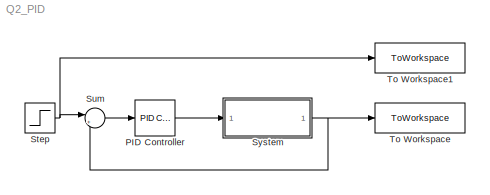
MODEL Q2_PID
KIND model
BLOCK [Reference] PID Controller  REF=simulink/Continuous/PID Controller
  AWVariant = Passthrough
  AntiWindupMode = none
  Controller = PID
  ControllerParametersSource = internal
  D = Kd
  DGainOutDataTypeStr = Inherit: Inherit via internal rule
  DOutMax = []
  DOutMin = []
  DParamDataTypeStr = Inherit: Inherit via internal rule
  DParamMax = []
  DParamMin = []
  DProdOutDataTypeStr = Inherit: Inherit via internal rule
  DVariant = InternalParameters
  DerivativeFilterVariant = ContFilter
  DifferentiatorICPrevScaledInput = 0
  DifferentiatorOutDataTypeStr = Inherit: Inherit via internal rule
  DifferentiatorOutMax = []
  DifferentiatorOutMin = []
  DivideOutDataTypeStr = Inherit: Inherit via internal rule
  DivideOutMax = []
  DivideOutMin = []
  ExternalReset = none
  ExternalResetVariant = Disabled
  FdbkBlocksVariant = Forward
  FilterContinuousStateAttributes = ''
  FilterDiffDenAccumDataTypeStr = Inherit: Inherit via internal rule
  FilterDiffDenProductOutputDataTypeStr = Inherit: Inherit via internal rule
  FilterDiffNumAccumDataTypeStr = Inherit: Inherit via internal rule
  FilterDiffNumProductOutputDataTypeStr = Inherit: Inherit via internal rule
  FilterDiffOutCoefDataTypeStr = Inherit: Inherit via internal rule
  FilterDiffOutCoefMax = []
  FilterDiffOutCoefMin = []
  FilterICVariant = InternalICsFilter
  FilterMethod = Forward Euler
  FilterOutDataTypeStr = Inherit: Inherit via internal rule
  FilterOutMax = []
  FilterOutMin = []
  FilterRTWStateStorageClass = Auto
  FilterStateMustResolveToSignalObject = off
  Form = Parallel
  I = Ki
  IGainOutDataTypeStr = Inherit: Inherit via internal rule
  IOutMax = []
  IOutMin = []
  IParamDataTypeStr = Inherit: Inherit via internal rule
  IParamMax = []
  IParamMin = []
  IProdOutDataTypeStr = Inherit: Inherit via internal rule
  IVariant = InternalParameters
  IdealPFdbkVariant = Disabled
  IdealPVariant = Disabled
  IgnoreLimit = off
  InitialConditionForFilter = 0
  InitialConditionForIntegrator = 0
  InitialConditionSetting = Auto
  InitialConditionSource = internal
  IntegratorContinuousStateAttributes = ''
  IntegratorICVariant = InternalICs
  IntegratorMethod = Forward Euler
  IntegratorOutDataTypeStr = Inherit: Inherit via internal rule
  IntegratorOutMax = []
  IntegratorOutMin = []
  IntegratorRTWStateStorageClass = Auto
  IntegratorStateMustResolveToSignalObject = off
  IntegratorVariant = Continuous
  Kb = 1
  KbOutDataTypeStr = Inherit: Inherit via internal rule
  KbOutMax = []
  KbOutMin = []
  KbParamDataTypeStr = Inherit: Inherit via internal rule
  KbParamMax = []
  KbParamMin = []
  Kt = 1
  KtOutDataTypeStr = Inherit: Inherit via internal rule
  KtOutMax = []
  KtOutMin = []
  KtParamDataTypeStr = Inherit: Inherit via internal rule
  KtParamMax = []
  KtParamMin = []
  LimitOutput = off
  LinearizeAsGain = on
  LockScale = off
  LowerSaturationLimit = -inf
  N = 100
  NCopyVariant = Disabled
  NGainOutDataTypeStr = Inherit: Inherit via internal rule
  NOutMax = []
  NOutMin = []
  NParamDataTypeStr = Inherit: Inherit via internal rule
  NParamMax = []
  NParamMin = []
  NProdOutDataTypeStr = Inherit: Inherit via internal rule
  NTsProdOutDataTypeStr = Inherit: Inherit via internal rule
  NTsProdOutMax = []
  NTsProdOutMin = []
  NVariant = InternalParameters
  P = Kp
  PCopyVariant = Disabled
  PGainOutDataTypeStr = Inherit: Inherit via internal rule
  POutMax = []
  POutMin = []
  PParamDataTypeStr = Inherit: Inherit via internal rule
  PParamMax = []
  PParamMin = []
  PProdOutDataTypeStr = Inherit: Inherit via internal rule
  ParallelPVariant = InternalParameters
  Ports = [1, 1]
  RTWMemSecDataConstants = Inherit from model
  RTWMemSecDataInternal = Inherit from model
  RTWMemSecDataParameters = Inherit from model
  RTWMemSecFuncExecute = Inherit from model
  RTWMemSecFuncInitTerm = Inherit from model
  ReciprocalOutDataTypeStr = Inherit: Inherit via internal rule
  ReciprocalOutMax = []
  ReciprocalOutMin = []
  RndMeth = Floor
  SID = 8
  SampleTime = -1
  SatFdbkVariant = Disabled
  SatVariant = Disabled
  SaturateOnIntegerOverflow = off
  SaturationOutDataTypeStr = Inherit: Same as input
  SaturationOutMax = []
  SaturationOutMin = []
  SourceBlock = simulink/Continuous/PID Controller
  SourceProductBaseCode = SL
  SourceType = PID 1dof
  SumAccumDataTypeStr = Inherit: Inherit via internal rule
  SumDAccumDataTypeStr = Inherit: Inherit via internal rule
  SumDOutDataTypeStr = Inherit: Inherit via internal rule
  SumDOutMax = []
  SumDOutMin = []
  SumDenAccumDataTypeStr = Inherit: Inherit via internal rule
  SumDenOutDataTypeStr = Inherit: Inherit via internal rule
  SumDenOutMax = []
  SumDenOutMin = []
  SumFdbkVariant = Disabled
  SumI1AccumDataTypeStr = Inherit: Inherit via internal rule
  SumI1OutDataTypeStr = Inherit: Inherit via internal rule
  SumI1OutMax = []
  SumI1OutMin = []
  SumI2AccumDataTypeStr = Inherit: Inherit via internal rule
  SumI2OutDataTypeStr = Inherit: Inherit via internal rule
  SumI2OutMax = []
  SumI2OutMin = []
  SumI3AccumDataTypeStr = Inherit: Inherit via internal rule
  SumI3OutDataTypeStr = Inherit: Inherit via internal rule
  SumI3OutMax = []
  SumI3OutMin = []
  SumI4AccumDataTypeStr = Inherit: Inherit via internal rule
  SumI4OutDataTypeStr = Inherit: Inherit via internal rule
  SumI4OutMax = []
  SumI4OutMin = []
  SumNumAccumDataTypeStr = Inherit: Inherit via internal rule
  SumNumOutDataTypeStr = Inherit: Inherit via internal rule
  SumNumOutMax = []
  SumNumOutMin = []
  SumOutDataTypeStr = Inherit: Inherit via internal rule
  SumOutMax = []
  SumOutMin = []
  SumVariant = Sum_PID
  TRSumVariant = Passthrough
  TRVariant = Disabled
  TimeDomain = Continuous-time
  TrackingMode = off
  TsampFilterVariant = InternalTs
  TsampIntegralVariant = Passthrough
  TsampNgainVariant = Passthrough
  TunerSelectOption = Transfer Function Based (PID Tuner App)
  UdiffTsProdOutDataTypeStr = Inherit: Inherit via internal rule
  UdiffTsProdOutMax = []
  UdiffTsProdOutMin = []
  UintegralTsProdOutDataTypeStr = Inherit: Inherit via internal rule
  UintegralTsProdOutMax = []
  UintegralTsProdOutMin = []
  UngainTsProdOutDataTypeStr = Inherit: Inherit via internal rule
  UngainTsProdOutMax = []
  UngainTsProdOutMin = []
  UpperSaturationLimit = inf
  UseExternalTs = off
  UseFilter = on
  ZeroCross = on
BLOCK [Step] Step
  SID = 9
  SampleTime = 0
  Time = 0
BLOCK [Sum] Sum
  Inputs = |+-
  Ports = [2, 1]
  SID = 10
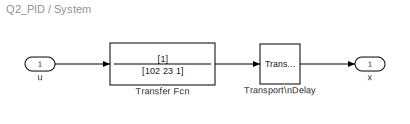
BLOCK [SubSystem] System
  Ports = [1, 1]
  RequestExecContextInheritance = off
  SID = 5
BLOCK [TransferFcn] System/Transfer Fcn
  Denominator = [102 23 1]
  SID = 2
BLOCK [TransportDelay] System/Transport\nDelay
  DelayTime = 30
  Ports = [1, 1]
  SID = 3
BLOCK [Inport] System/u
  SID = 6
BLOCK [Outport] System/x
  SID = 7
BLOCK [ToWorkspace] To Workspace
  FixptAsFi = on
  MaxDataPoints = inf
  Ports = [1]
  SID = 11
  SampleTime = -1
  Save2DSignal = 2-D array (concatenate along first dimension)
  VariableName = x
BLOCK [ToWorkspace] To Workspace1
  FixptAsFi = on
  MaxDataPoints = inf
  Ports = [1]
  SID = 12
  SampleTime = -1
  Save2DSignal = 2-D array (concatenate along first dimension)
  VariableName = desired
LINE PID Controller:1 -> System:1
NET Step:1 -> Sum:1, To Workspace1:1
LINE Sum:1 -> PID Controller:1
LINE System/Transfer Fcn:1 -> System/Transport\nDelay:1
LINE System/Transport\nDelay:1 -> System/x:1
LINE System/u:1 -> System/Transfer Fcn:1
NET System:1 -> Sum:2, To Workspace:1
note: NET lines group one-source signal fan-out (src -> all destinations, sorted); 1:1 wires keep LINE
